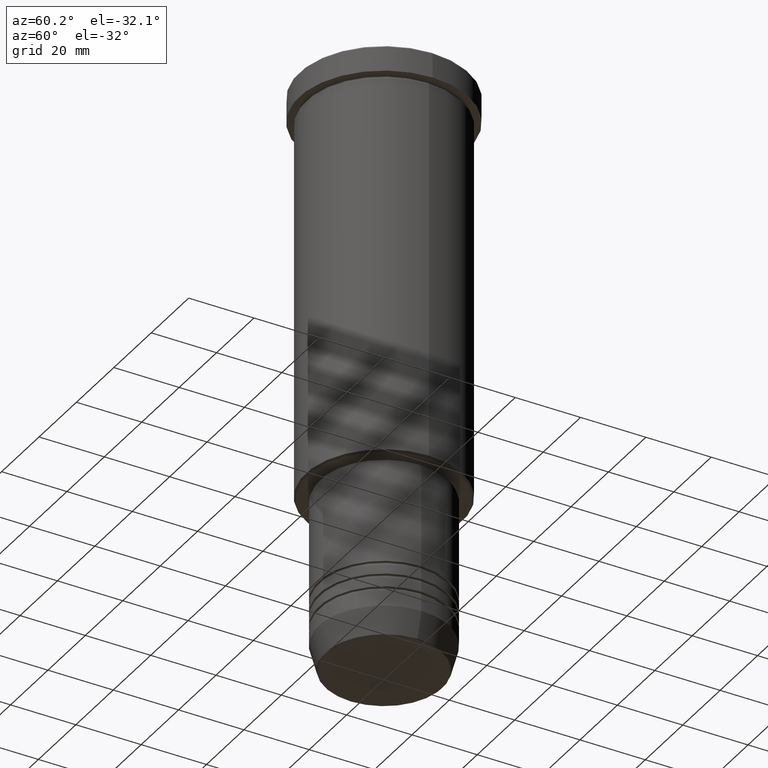
[diagram: clean part render]
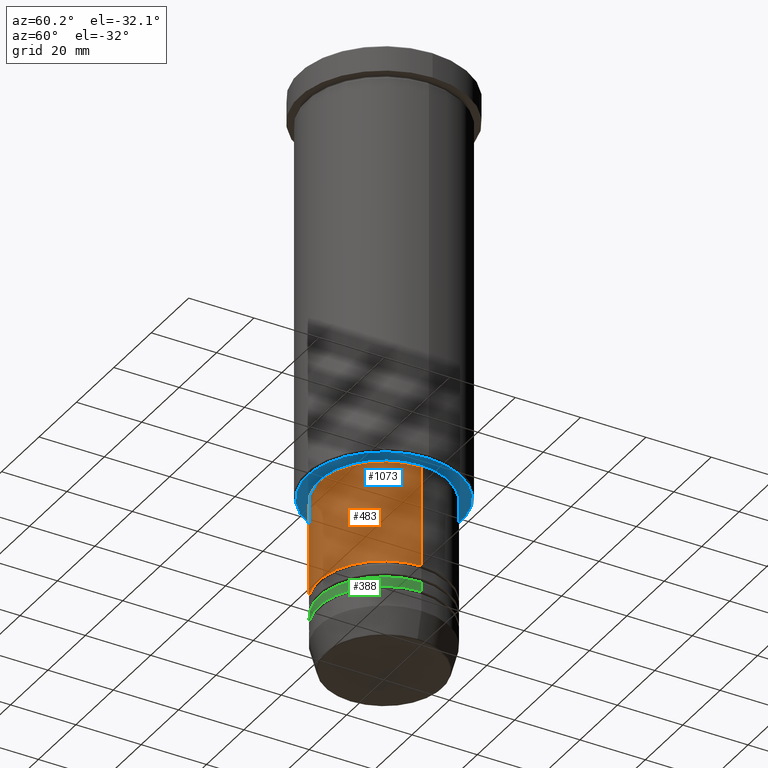
[diagram: same view with three faces highlighted in distinct colors, each labeled with its STEP entity id]
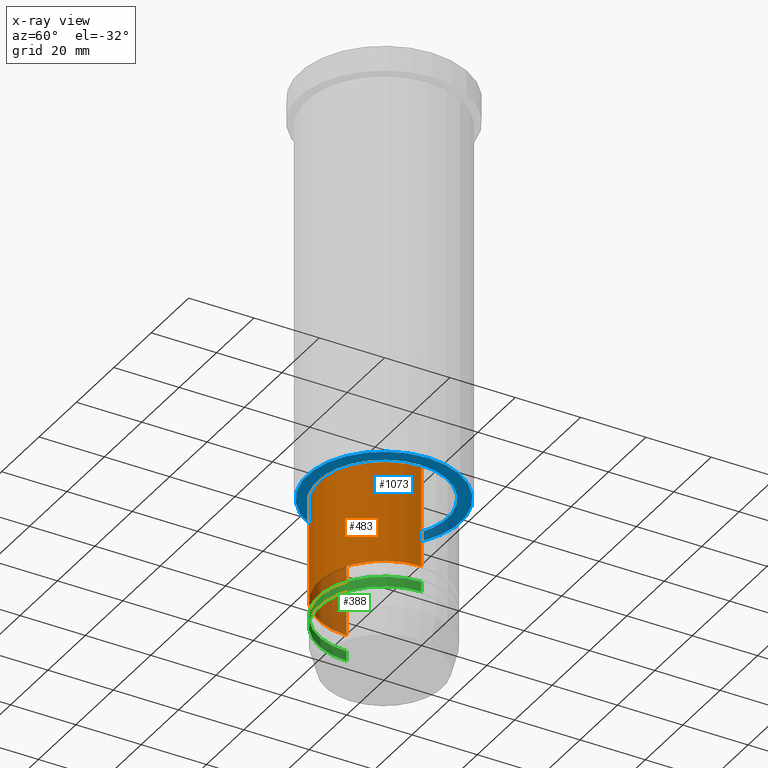
[diagram: x-ray of the same camera — body ghosted, the three highlighted faces saturated]
A machine part, auxiliary view with three faces highlighted in distinct colors.
The next image is the same camera in x-ray (body ghosted, the three faces saturated) — at least one of them is partly hidden behind the body in this view.
Their STEP definitions:

[orange] entity #483 — the highlighted cylindrical surface (partial cylindrical patch) has radius 20 mm, axis along (-0, -0, 1).
#20 = VECTOR ( 'NONE', #699, 1000.000000000000000 ) ;
#23 = ORIENTED_EDGE ( 'NONE', *, *, #576, .F. ) ;
#59 = CYLINDRICAL_SURFACE ( 'NONE', #1070, 20.00000000000000355 ) ;
#91 = EDGE_CURVE ( 'NONE', #711, #1077, #1064, .T. ) ;
#92 = ORIENTED_EDGE ( 'NONE', *, *, #703, .T. ) ;
#152 = CARTESIAN_POINT ( 'NONE',  ( -20.00000000000000355, 2.449293598294706907E-15, -127.0000000000000000 ) ) ;
#154 = DIRECTION ( 'NONE',  ( -0.000000000000000000, -0.000000000000000000, 1.000000000000000000 ) ) ;
#200 = VERTEX_POINT ( 'NONE', #736 ) ;
#224 = DIRECTION ( 'NONE',  ( 1.000000000000000000, 0.000000000000000000, 0.000000000000000000 ) ) ;
#301 = DIRECTION ( 'NONE',  ( 1.000000000000000000, 0.000000000000000000, 0.000000000000000000 ) ) ;
#309 = ORIENTED_EDGE ( 'NONE', *, *, #830, .F. ) ;
#333 = LINE ( 'NONE', #885, #20 ) ;
#434 = CARTESIAN_POINT ( 'NONE',  ( -20.00000000000000355, 2.449293598294706907E-15, -158.0000000000000000 ) ) ;
#483 = ADVANCED_FACE ( 'NONE', ( #961 ), #59, .T. ) ;
#495 = CIRCLE ( 'NONE', #673, 20.00000000000000355 ) ;
#576 = EDGE_CURVE ( 'NONE', #711, #1163, #333, .T. ) ;
#642 = AXIS2_PLACEMENT_3D ( 'NONE', #1060, #154, #889 ) ;
#648 = VECTOR ( 'NONE', #1086, 1000.000000000000000 ) ;
#660 = DIRECTION ( 'NONE',  ( -0.000000000000000000, -0.000000000000000000, 1.000000000000000000 ) ) ;
#673 = AXIS2_PLACEMENT_3D ( 'NONE', #749, #660, #301 ) ;
#693 = CARTESIAN_POINT ( 'NONE',  ( 0.000000000000000000, 0.000000000000000000, 0.000000000000000000 ) ) ;
#699 = DIRECTION ( 'NONE',  ( -0.000000000000000000, -0.000000000000000000, 1.000000000000000000 ) ) ;
#703 = EDGE_CURVE ( 'NONE', #1077, #200, #708, .T. ) ;
#708 = LINE ( 'NONE', #998, #648 ) ;
#711 = VERTEX_POINT ( 'NONE', #434 ) ;
#736 = CARTESIAN_POINT ( 'NONE',  ( 20.00000000000000355, 0.000000000000000000, -127.0000000000000000 ) ) ;
#749 = CARTESIAN_POINT ( 'NONE',  ( 0.000000000000000000, 0.000000000000000000, -127.0000000000000000 ) ) ;
#830 = EDGE_CURVE ( 'NONE', #1163, #200, #495, .T. ) ;
#855 = ORIENTED_EDGE ( 'NONE', *, *, #91, .T. ) ;
#885 = CARTESIAN_POINT ( 'NONE',  ( -20.00000000000000355, 2.449293598294706907E-15, 0.000000000000000000 ) ) ;
#889 = DIRECTION ( 'NONE',  ( 1.000000000000000000, 0.000000000000000000, 0.000000000000000000 ) ) ;
#961 = FACE_OUTER_BOUND ( 'NONE', #1007, .T. ) ;
#998 = CARTESIAN_POINT ( 'NONE',  ( 20.00000000000000355, 0.000000000000000000, 0.000000000000000000 ) ) ;
#1007 = EDGE_LOOP ( 'NONE', ( #23, #855, #92, #309 ) ) ;
#1054 = DIRECTION ( 'NONE',  ( -0.000000000000000000, -0.000000000000000000, 1.000000000000000000 ) ) ;
#1060 = CARTESIAN_POINT ( 'NONE',  ( 0.000000000000000000, 0.000000000000000000, -158.0000000000000000 ) ) ;
#1064 = CIRCLE ( 'NONE', #642, 20.00000000000000355 ) ;
#1070 = AXIS2_PLACEMENT_3D ( 'NONE', #693, #1054, #224 ) ;
#1077 = VERTEX_POINT ( 'NONE', #1175 ) ;
#1086 = DIRECTION ( 'NONE',  ( -0.000000000000000000, -0.000000000000000000, 1.000000000000000000 ) ) ;
#1163 = VERTEX_POINT ( 'NONE', #152 ) ;
#1175 = CARTESIAN_POINT ( 'NONE',  ( 20.00000000000000355, 0.000000000000000000, -158.0000000000000000 ) ) ;

[blue] entity #1073 — the highlighted planar face has unit normal (0, 0, -1).
#18 = AXIS2_PLACEMENT_3D ( 'NONE', #514, #887, #518 ) ;
#27 = CARTESIAN_POINT ( 'NONE',  ( 0.000000000000000000, 0.000000000000000000, -126.0000000000000000 ) ) ;
#31 = DIRECTION ( 'NONE',  ( 0.000000000000000000, 0.000000000000000000, -1.000000000000000000 ) ) ;
#55 = CIRCLE ( 'NONE', #18, 19.50000000000000355 ) ;
#61 = CARTESIAN_POINT ( 'NONE',  ( 0.000000000000000000, 0.000000000000000000, -126.0000000000000000 ) ) ;
#90 = DIRECTION ( 'NONE',  ( -1.000000000000000000, 0.000000000000000000, 0.000000000000000000 ) ) ;
#99 = ORIENTED_EDGE ( 'NONE', *, *, #978, .T. ) ;
#132 = EDGE_CURVE ( 'NONE', #509, #1024, #55, .T. ) ;
#147 = CIRCLE ( 'NONE', #1071, 23.49999999999996092 ) ;
#158 = PLANE ( 'NONE',  #917 ) ;
#190 = CIRCLE ( 'NONE', #260, 23.49999999999996092 ) ;
#260 = AXIS2_PLACEMENT_3D ( 'NONE', #61, #405, #868 ) ;
#305 = EDGE_LOOP ( 'NONE', ( #1019, #99 ) ) ;
#385 = DIRECTION ( 'NONE',  ( -0.000000000000000000, -0.000000000000000000, 1.000000000000000000 ) ) ;
#401 = ORIENTED_EDGE ( 'NONE', *, *, #132, .T. ) ;
#403 = CARTESIAN_POINT ( 'NONE',  ( -23.49999999999996092, 2.908536147974961346E-15, -126.0000000000000000 ) ) ;
#404 = EDGE_CURVE ( 'NONE', #1024, #509, #622, .T. ) ;
#405 = DIRECTION ( 'NONE',  ( 0.000000000000000000, 0.000000000000000000, -1.000000000000000000 ) ) ;
#438 = FACE_OUTER_BOUND ( 'NONE', #305, .T. ) ;
#466 = VERTEX_POINT ( 'NONE', #685 ) ;
#467 = VERTEX_POINT ( 'NONE', #403 ) ;
#481 = DIRECTION ( 'NONE',  ( 1.000000000000000000, 0.000000000000000000, 0.000000000000000000 ) ) ;
#492 = AXIS2_PLACEMENT_3D ( 'NONE', #27, #385, #481 ) ;
#509 = VERTEX_POINT ( 'NONE', #951 ) ;
#514 = CARTESIAN_POINT ( 'NONE',  ( 0.000000000000000000, 0.000000000000000000, -126.0000000000000000 ) ) ;
#518 = DIRECTION ( 'NONE',  ( 1.000000000000000000, 0.000000000000000000, 0.000000000000000000 ) ) ;
#617 = DIRECTION ( 'NONE',  ( 0.000000000000000000, 0.000000000000000000, -1.000000000000000000 ) ) ;
#622 = CIRCLE ( 'NONE', #492, 19.50000000000000355 ) ;
#676 = ORIENTED_EDGE ( 'NONE', *, *, #404, .T. ) ;
#685 = CARTESIAN_POINT ( 'NONE',  ( 23.49999999999996092, 0.000000000000000000, -126.0000000000000000 ) ) ;
#767 = CARTESIAN_POINT ( 'NONE',  ( 19.50000000000000355, 0.000000000000000000, -126.0000000000000000 ) ) ;
#809 = EDGE_CURVE ( 'NONE', #466, #467, #147, .T. ) ;
#814 = FACE_BOUND ( 'NONE', #825, .T. ) ;
#825 = EDGE_LOOP ( 'NONE', ( #676, #401 ) ) ;
#868 = DIRECTION ( 'NONE',  ( -1.000000000000000000, 0.000000000000000000, 0.000000000000000000 ) ) ;
#887 = DIRECTION ( 'NONE',  ( -0.000000000000000000, -0.000000000000000000, 1.000000000000000000 ) ) ;
#917 = AXIS2_PLACEMENT_3D ( 'NONE', #977, #617, #1171 ) ;
#920 = CARTESIAN_POINT ( 'NONE',  ( 0.000000000000000000, 0.000000000000000000, -126.0000000000000000 ) ) ;
#951 = CARTESIAN_POINT ( 'NONE',  ( -19.50000000000000355, 2.388061258337339333E-15, -126.0000000000000000 ) ) ;
#977 = CARTESIAN_POINT ( 'NONE',  ( 0.000000000000000000, 24.00000000000000000, -126.0000000000000000 ) ) ;
#978 = EDGE_CURVE ( 'NONE', #467, #466, #190, .T. ) ;
#1019 = ORIENTED_EDGE ( 'NONE', *, *, #809, .T. ) ;
#1024 = VERTEX_POINT ( 'NONE', #767 ) ;
#1071 = AXIS2_PLACEMENT_3D ( 'NONE', #920, #31, #90 ) ;
#1073 = ADVANCED_FACE ( 'NONE', ( #438, #814 ), #158, .T. ) ;
#1171 = DIRECTION ( 'NONE',  ( -1.000000000000000000, 0.000000000000000000, -0.000000000000000000 ) ) ;

[green] entity #388 — the highlighted cylindrical surface (partial cylindrical patch) has radius 20 mm, axis along (-0, -0, 1).
#22 = AXIS2_PLACEMENT_3D ( 'NONE', #51, #1039, #777 ) ;
#32 = DIRECTION ( 'NONE',  ( -0.000000000000000000, -0.000000000000000000, 1.000000000000000000 ) ) ;
#51 = CARTESIAN_POINT ( 'NONE',  ( 0.000000000000000000, 0.000000000000000000, -165.9999999999999716 ) ) ;
#54 = EDGE_CURVE ( 'NONE', #959, #1123, #465, .T. ) ;
#85 = CARTESIAN_POINT ( 'NONE',  ( -20.00000000000000355, 2.449293598294706907E-15, 0.000000000000000000 ) ) ;
#93 = FACE_OUTER_BOUND ( 'NONE', #858, .T. ) ;
#104 = DIRECTION ( 'NONE',  ( 1.000000000000000000, 0.000000000000000000, 0.000000000000000000 ) ) ;
#118 = ORIENTED_EDGE ( 'NONE', *, *, #54, .F. ) ;
#136 = EDGE_CURVE ( 'NONE', #269, #1123, #297, .T. ) ;
#178 = CARTESIAN_POINT ( 'NONE',  ( 20.00000000000000355, 0.000000000000000000, -165.9999999999999716 ) ) ;
#209 = EDGE_CURVE ( 'NONE', #1014, #959, #1089, .T. ) ;
#235 = DIRECTION ( 'NONE',  ( -0.000000000000000000, -0.000000000000000000, 1.000000000000000000 ) ) ;
#269 = VERTEX_POINT ( 'NONE', #178 ) ;
#297 = LINE ( 'NONE', #764, #1068 ) ;
#299 = ORIENTED_EDGE ( 'NONE', *, *, #136, .T. ) ;
#335 = AXIS2_PLACEMENT_3D ( 'NONE', #751, #32, #104 ) ;
#374 = VECTOR ( 'NONE', #1173, 1000.000000000000000 ) ;
#388 = ADVANCED_FACE ( 'NONE', ( #93 ), #932, .T. ) ;
#465 = CIRCLE ( 'NONE', #621, 20.00000000000000000 ) ;
#504 = CARTESIAN_POINT ( 'NONE',  ( -20.00000000000000000, 2.449293598294706513E-15, -163.0000000000000000 ) ) ;
#621 = AXIS2_PLACEMENT_3D ( 'NONE', #694, #962, #881 ) ;
#694 = CARTESIAN_POINT ( 'NONE',  ( 0.000000000000000000, 0.000000000000000000, -163.0000000000000000 ) ) ;
#748 = CIRCLE ( 'NONE', #22, 20.00000000000000355 ) ;
#751 = CARTESIAN_POINT ( 'NONE',  ( 0.000000000000000000, 0.000000000000000000, 0.000000000000000000 ) ) ;
#764 = CARTESIAN_POINT ( 'NONE',  ( 20.00000000000000355, 0.000000000000000000, 0.000000000000000000 ) ) ;
#777 = DIRECTION ( 'NONE',  ( 1.000000000000000000, 0.000000000000000000, 0.000000000000000000 ) ) ;
#810 = CARTESIAN_POINT ( 'NONE',  ( 20.00000000000000000, 0.000000000000000000, -163.0000000000000000 ) ) ;
#858 = EDGE_LOOP ( 'NONE', ( #1093, #859, #299, #118 ) ) ;
#859 = ORIENTED_EDGE ( 'NONE', *, *, #983, .T. ) ;
#881 = DIRECTION ( 'NONE',  ( 1.000000000000000000, 0.000000000000000000, 0.000000000000000000 ) ) ;
#932 = CYLINDRICAL_SURFACE ( 'NONE', #335, 20.00000000000000355 ) ;
#959 = VERTEX_POINT ( 'NONE', #504 ) ;
#962 = DIRECTION ( 'NONE',  ( -0.000000000000000000, -0.000000000000000000, 1.000000000000000000 ) ) ;
#983 = EDGE_CURVE ( 'NONE', #1014, #269, #748, .T. ) ;
#1014 = VERTEX_POINT ( 'NONE', #1044 ) ;
#1039 = DIRECTION ( 'NONE',  ( -0.000000000000000000, -0.000000000000000000, 1.000000000000000000 ) ) ;
#1044 = CARTESIAN_POINT ( 'NONE',  ( -20.00000000000000355, 2.449293598294706907E-15, -165.9999999999999716 ) ) ;
#1068 = VECTOR ( 'NONE', #235, 1000.000000000000000 ) ;
#1089 = LINE ( 'NONE', #85, #374 ) ;
#1093 = ORIENTED_EDGE ( 'NONE', *, *, #209, .F. ) ;
#1123 = VERTEX_POINT ( 'NONE', #810 ) ;
#1173 = DIRECTION ( 'NONE',  ( -0.000000000000000000, -0.000000000000000000, 1.000000000000000000 ) ) ;